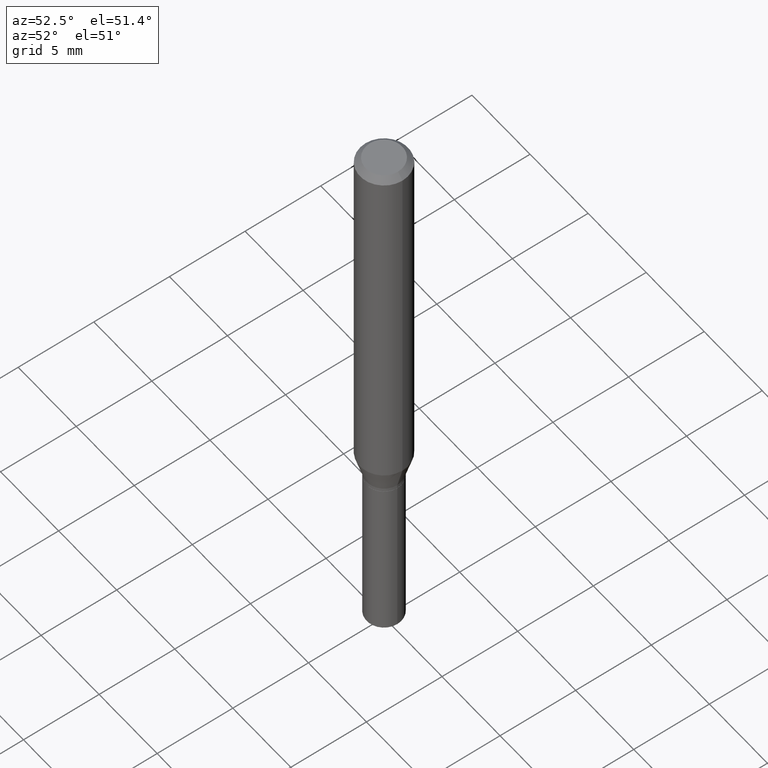
[diagram: clean part render]
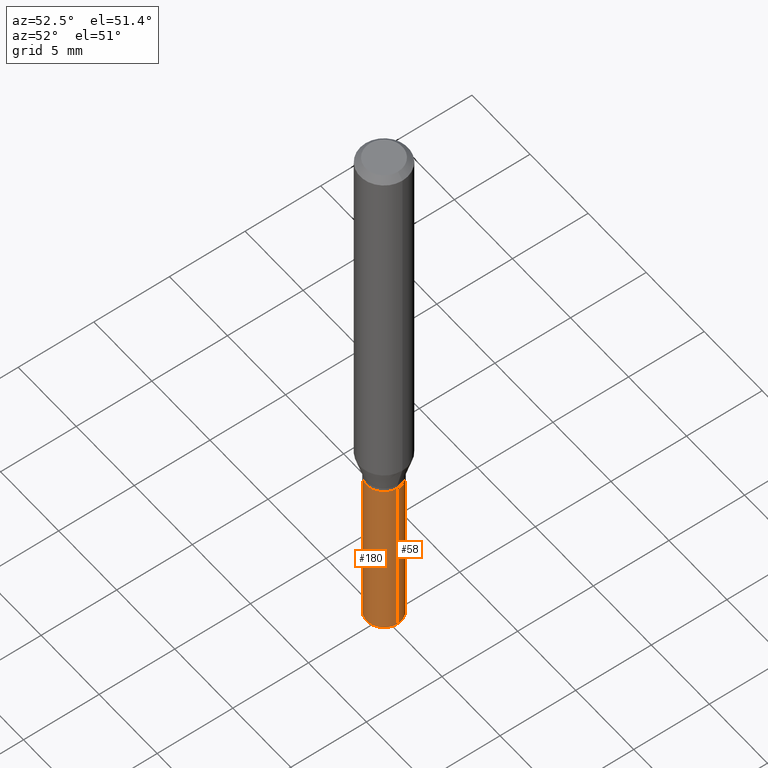
[diagram: same view with one multi-face feature highlighted, each face labeled with its STEP entity id]
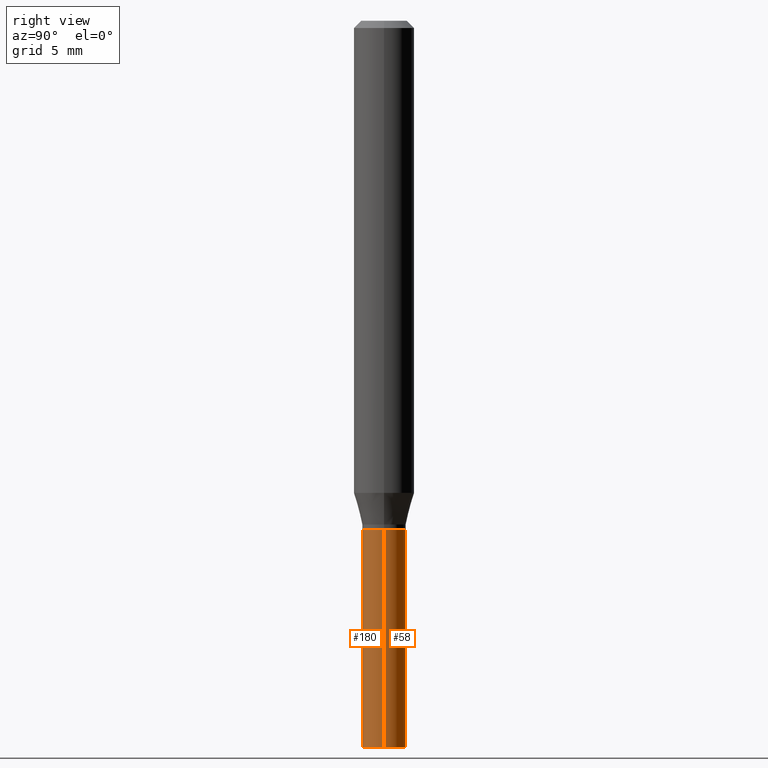
[diagram: same view with one multi-face feature highlighted, each face labeled with its STEP entity id]
A machine part, auxiliary view. The highlighted faces form ONE feature: a constant-radius fillet chain: 2 tangent blend faces with common blend radius 1.143 mm. The faces share edges in the B-rep.
A second angle (right view) of the same feature is appended — it is thin or edge-on in the first view.
Their STEP definitions:
[1] entity #180 (Cylinder):
#8 = VERTEX_POINT ( 'NONE', #241 ) ;
#31 = DIRECTION ( 'NONE',  ( -2.445468806185136597E-29, 3.491481338843145583E-15, 1.000000000000000000 ) ) ;
#44 = ORIENTED_EDGE ( 'NONE', *, *, #219, .T. ) ;
#64 = VECTOR ( 'NONE', #68, 39.37007874015748143 ) ;
#66 = CARTESIAN_POINT ( 'NONE',  ( 3.668203209277704895E-29, -5.237222008264718177E-15, -1.500000000000000222 ) ) ;
#68 = DIRECTION ( 'NONE',  ( -2.445468806185136877E-29, 3.491481338843145188E-15, 1.000000000000000000 ) ) ;
#82 = DIRECTION ( 'NONE',  ( -2.445468806185136597E-29, 3.491481338843145583E-15, 1.000000000000000000 ) ) ;
#110 = DIRECTION ( 'NONE',  ( -2.445468806185136597E-29, 3.491481338843145583E-15, 1.000000000000000000 ) ) ;
#112 = FACE_OUTER_BOUND ( 'NONE', #196, .T. ) ;
#128 = CARTESIAN_POINT ( 'NONE',  ( -0.04499999999999999833, -4.131894475932966226E-15, -1.050000000000000044 ) ) ;
#147 = DIRECTION ( 'NONE',  ( 1.000000000000000000, -6.982962677686269077E-15, 0.000000000000000000 ) ) ;
#165 = ORIENTED_EDGE ( 'NONE', *, *, #345, .F. ) ;
#172 = VECTOR ( 'NONE', #404, 39.37007874015748143 ) ;
#180 = ADVANCED_FACE ( 'NONE', ( #112 ), #217, .T. ) ;
#196 = EDGE_LOOP ( 'NONE', ( #165, #44, #275, #230 ) ) ;
#213 = LINE ( 'NONE', #327, #64 ) ;
#217 = CYLINDRICAL_SURFACE ( 'NONE', #322, 0.04499999999999999833 ) ;
#219 = EDGE_CURVE ( 'NONE', #271, #8, #380, .T. ) ;
#225 = DIRECTION ( 'NONE',  ( 1.000000000000000000, -6.982962677686269077E-15, 0.000000000000000000 ) ) ;
#226 = VERTEX_POINT ( 'NONE', #260 ) ;
#230 = ORIENTED_EDGE ( 'NONE', *, *, #370, .F. ) ;
#241 = CARTESIAN_POINT ( 'NONE',  ( 0.04499999999999999833, -5.551455328760600652E-15, -1.500000000000000222 ) ) ;
#246 = CIRCLE ( 'NONE', #270, 0.04499999999999999833 ) ;
#260 = CARTESIAN_POINT ( 'NONE',  ( 0.04499999999999999833, -3.980288726281185120E-15, -1.050000000000000044 ) ) ;
#265 = LINE ( 'NONE', #440, #172 ) ;
#270 = AXIS2_PLACEMENT_3D ( 'NONE', #303, #82, #225 ) ;
#271 = VERTEX_POINT ( 'NONE', #289 ) ;
#274 = EDGE_CURVE ( 'NONE', #8, #226, #213, .T. ) ;
#275 = ORIENTED_EDGE ( 'NONE', *, *, #274, .T. ) ;
#289 = CARTESIAN_POINT ( 'NONE',  ( -0.04499999999999999833, -4.131894475932966226E-15, -1.500000000000000222 ) ) ;
#293 = CARTESIAN_POINT ( 'NONE',  ( 0.000000000000000000, 0.000000000000000000, 0.000000000000000000 ) ) ;
#298 = VERTEX_POINT ( 'NONE', #128 ) ;
#303 = CARTESIAN_POINT ( 'NONE',  ( 2.567742246494393763E-29, -3.666055405785303434E-15, -1.050000000000000044 ) ) ;
#322 = AXIS2_PLACEMENT_3D ( 'NONE', #293, #31, #399 ) ;
#327 = CARTESIAN_POINT ( 'NONE',  ( 0.04499999999999999833, -3.142333204958819823E-16, 2.194279549108170967E-30 ) ) ;
#345 = EDGE_CURVE ( 'NONE', #271, #298, #265, .T. ) ;
#364 = AXIS2_PLACEMENT_3D ( 'NONE', #66, #110, #147 ) ;
#370 = EDGE_CURVE ( 'NONE', #298, #226, #246, .T. ) ;
#380 = CIRCLE ( 'NONE', #364, 0.04499999999999999833 ) ;
#399 = DIRECTION ( 'NONE',  ( 1.000000000000000000, -6.982962677686266711E-15, 4.876176775795935793E-29 ) ) ;
#404 = DIRECTION ( 'NONE',  ( -2.445468806185136877E-29, 3.491481338843145188E-15, 1.000000000000000000 ) ) ;
#440 = CARTESIAN_POINT ( 'NONE',  ( -0.04499999999999999833, 3.197442310920450718E-16, -2.213520790614707560E-30 ) ) ;
[2] entity #58 (Cylinder):
#8 = VERTEX_POINT ( 'NONE', #241 ) ;
#27 = FACE_OUTER_BOUND ( 'NONE', #442, .T. ) ;
#51 = ORIENTED_EDGE ( 'NONE', *, *, #345, .T. ) ;
#57 = DIRECTION ( 'NONE',  ( -2.445468806185136597E-29, 3.491481338843145583E-15, 1.000000000000000000 ) ) ;
#58 = ADVANCED_FACE ( 'NONE', ( #27 ), #173, .T. ) ;
#64 = VECTOR ( 'NONE', #68, 39.37007874015748143 ) ;
#68 = DIRECTION ( 'NONE',  ( -2.445468806185136877E-29, 3.491481338843145188E-15, 1.000000000000000000 ) ) ;
#70 = EDGE_CURVE ( 'NONE', #226, #298, #402, .T. ) ;
#92 = CARTESIAN_POINT ( 'NONE',  ( 0.000000000000000000, 0.000000000000000000, 0.000000000000000000 ) ) ;
#99 = ORIENTED_EDGE ( 'NONE', *, *, #274, .F. ) ;
#128 = CARTESIAN_POINT ( 'NONE',  ( -0.04499999999999999833, -4.131894475932966226E-15, -1.050000000000000044 ) ) ;
#139 = DIRECTION ( 'NONE',  ( 1.000000000000000000, -6.982962677686269077E-15, 0.000000000000000000 ) ) ;
#141 = EDGE_CURVE ( 'NONE', #8, #271, #344, .T. ) ;
#152 = DIRECTION ( 'NONE',  ( -2.445468806185136597E-29, 3.491481338843145583E-15, 1.000000000000000000 ) ) ;
#172 = VECTOR ( 'NONE', #404, 39.37007874015748143 ) ;
#173 = CYLINDRICAL_SURFACE ( 'NONE', #411, 0.04499999999999999833 ) ;
#200 = ORIENTED_EDGE ( 'NONE', *, *, #141, .T. ) ;
#206 = CARTESIAN_POINT ( 'NONE',  ( 2.567742246494393763E-29, -3.666055405785303434E-15, -1.050000000000000044 ) ) ;
#213 = LINE ( 'NONE', #327, #64 ) ;
#218 = DIRECTION ( 'NONE',  ( 1.000000000000000000, -6.982962677686269077E-15, 0.000000000000000000 ) ) ;
#226 = VERTEX_POINT ( 'NONE', #260 ) ;
#241 = CARTESIAN_POINT ( 'NONE',  ( 0.04499999999999999833, -5.551455328760600652E-15, -1.500000000000000222 ) ) ;
#260 = CARTESIAN_POINT ( 'NONE',  ( 0.04499999999999999833, -3.980288726281185120E-15, -1.050000000000000044 ) ) ;
#265 = LINE ( 'NONE', #440, #172 ) ;
#271 = VERTEX_POINT ( 'NONE', #289 ) ;
#272 = AXIS2_PLACEMENT_3D ( 'NONE', #426, #152, #218 ) ;
#274 = EDGE_CURVE ( 'NONE', #8, #226, #213, .T. ) ;
#289 = CARTESIAN_POINT ( 'NONE',  ( -0.04499999999999999833, -4.131894475932966226E-15, -1.500000000000000222 ) ) ;
#298 = VERTEX_POINT ( 'NONE', #128 ) ;
#314 = DIRECTION ( 'NONE',  ( -2.445468806185136597E-29, 3.491481338843145583E-15, 1.000000000000000000 ) ) ;
#327 = CARTESIAN_POINT ( 'NONE',  ( 0.04499999999999999833, -3.142333204958819823E-16, 2.194279549108170967E-30 ) ) ;
#344 = CIRCLE ( 'NONE', #272, 0.04499999999999999833 ) ;
#345 = EDGE_CURVE ( 'NONE', #271, #298, #265, .T. ) ;
#384 = DIRECTION ( 'NONE',  ( 1.000000000000000000, -6.982962677686266711E-15, 4.876176775795935793E-29 ) ) ;
#394 = AXIS2_PLACEMENT_3D ( 'NONE', #206, #57, #139 ) ;
#402 = CIRCLE ( 'NONE', #394, 0.04499999999999999833 ) ;
#404 = DIRECTION ( 'NONE',  ( -2.445468806185136877E-29, 3.491481338843145188E-15, 1.000000000000000000 ) ) ;
#411 = AXIS2_PLACEMENT_3D ( 'NONE', #92, #314, #384 ) ;
#426 = CARTESIAN_POINT ( 'NONE',  ( 3.668203209277704895E-29, -5.237222008264718177E-15, -1.500000000000000222 ) ) ;
#429 = ORIENTED_EDGE ( 'NONE', *, *, #70, .F. ) ;
#440 = CARTESIAN_POINT ( 'NONE',  ( -0.04499999999999999833, 3.197442310920450718E-16, -2.213520790614707560E-30 ) ) ;
#442 = EDGE_LOOP ( 'NONE', ( #200, #51, #429, #99 ) ) ;